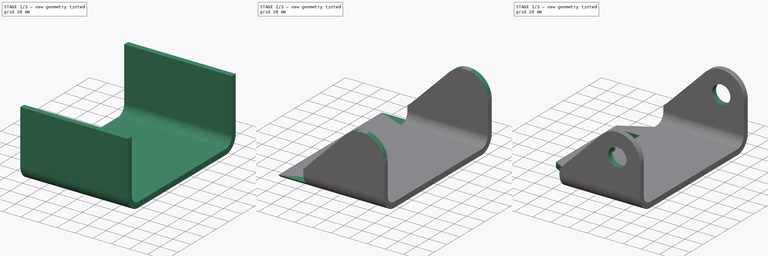
[diagram: build sequence overview — one tinted view per stage of 3, left to right]
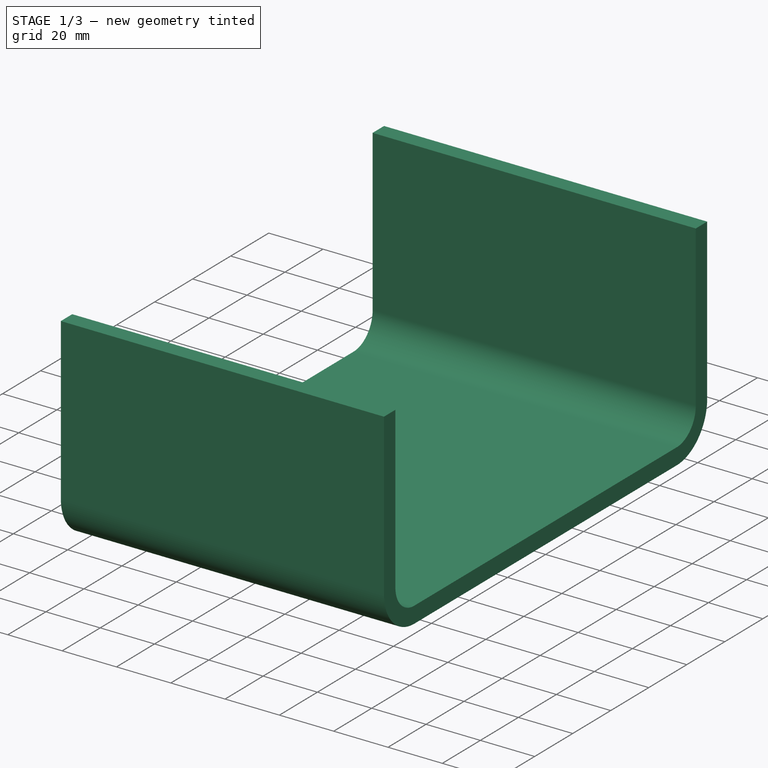
[diagram: stage 1 of 3 — iso view after this stage's code; geometry added in this stage tinted green]
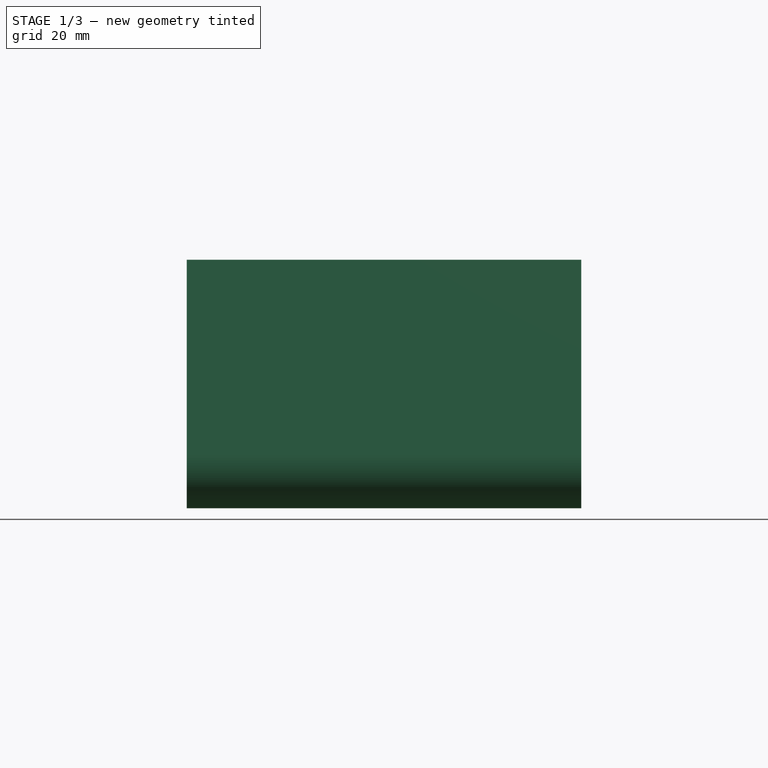
[diagram: stage 1 of 3 — front view after this stage's code; geometry added in this stage tinted green]
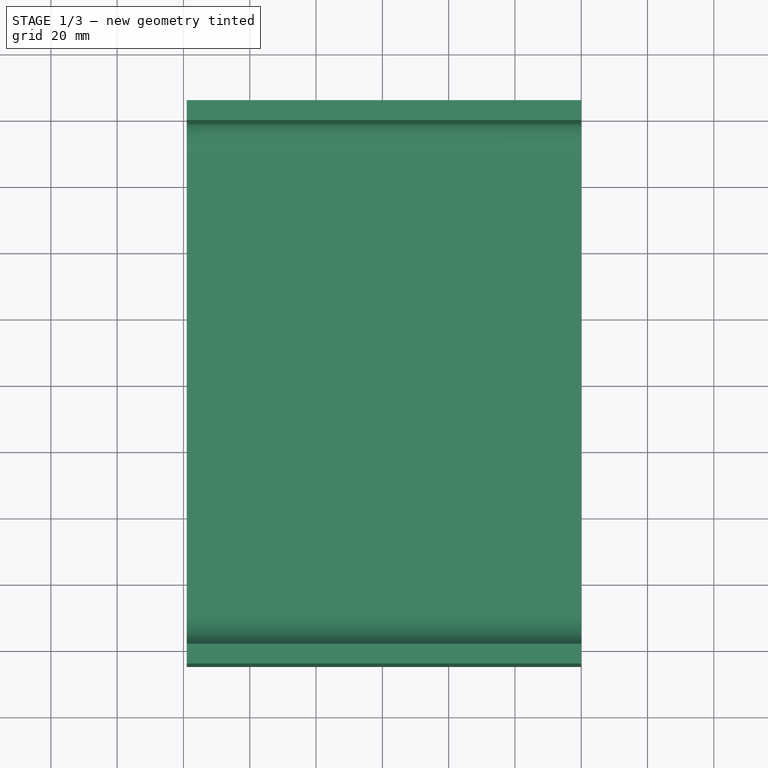
[diagram: stage 1 of 3 — top view after this stage's code; geometry added in this stage tinted green]
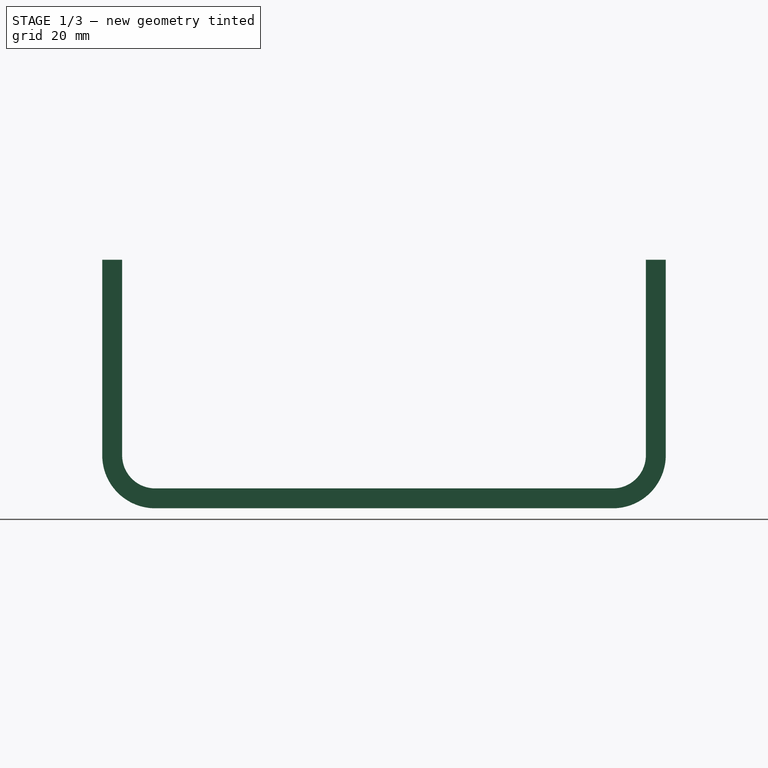
[diagram: stage 1 of 3 — right view after this stage's code; geometry added in this stage tinted green]
FCSTD DOCUMENT  (FreeCAD 1.1R42180 (Git))
Label: 25-06-15-SM_MOWER_BRACKET
License: Creative Commons Attribution-NonCommercial-ShareAlike 4.0
LicenseURL: https://creativecommons.org/licenses/by-nc-sa/4.0/
objects: Sketcher::SketchObject×4, PartDesign::Pocket×3, App::Point×1, PartDesign::Pad×1, PartDesign::Thickness×1, PartDesign::Body×1, App::TextDocument×1
note: 24 computed .brp shape members not serialized (recipe doc carries the construction recipe); baked Part::Feature solids carry a one-line shape summary decoded from their .brp

FEATURE [App::Point] Origin001  label="Origine"
  Role = Origin
FEATURE [Sketcher::SketchObject] Sketch
  ArcFitTolerance = 1e-06
  AttachmentSupport = -> [Origin]
  ExternalTypes = [0]
  FullyConstrained = true
  MakeInternals = false
  MapMode = 5
  Placement = pos=(0,0,0) rot=(0.57735,0.57735,0.57735;2.0944rad)
  sketch-geometry (6):
    g0: LineSegment StartX=-85 StartY=75 StartZ=0 EndX=85 EndY=75 EndZ=0
    g1: LineSegment StartX=85 StartY=75 StartZ=0 EndX=85 EndY=16 EndZ=0
    g2: ArcOfCircle CenterX=69 CenterY=16 CenterZ=0 NormalX=0 NormalY=0 NormalZ=1 AngleXU=0 Radius=16 StartAngle=4.71239 EndAngle=6.28319
    g3: LineSegment StartX=69 StartY=0 StartZ=0 EndX=-69 EndY=0 EndZ=0
    g4: ArcOfCircle CenterX=-69 CenterY=16 CenterZ=0 NormalX=0 NormalY=0 NormalZ=1 AngleXU=0 Radius=16 StartAngle=3.14159 EndAngle=4.71239
    g5: LineSegment StartX=-85 StartY=16 StartZ=0 EndX=-85 EndY=75 EndZ=0
  constraints (15):
    c: Coincident(g0,g1)
    c: Vertical(g1)
    c: Tangent(g1,g2) = 1.5708
    c: PointOnObject(g2,g-1)
    c: PointOnObject(g3,g-1)
    c: Tangent(g3,g4) = 1.5708
    c: Tangent(g4,g5) = 1.5708
    c: Coincident(g5,g0)
    c: DistanceY(g-1,g0) = 75
    c: DistanceX(g0,g0) = 170
    c: Symmetric(g0,g0,g-2)
    c: Vertical(g5)
    c: Tangent(g2,g3) = 1.5708
    c: Radius(g4) = 16
    c: Equal(g4,g2)
FEATURE [PartDesign::Pad] Pad
  Direction = (1,0,0)
  Length = 119
  Length2 = 10
  Profile = -> Sketch
  ReferenceAxis = -> Sketch [N_Axis]
  Refine = true
  Reversed = true
  Suppressed = false
  Type = 0
FEATURE [Sketcher::SketchObject] Sketch001
  ArcFitTolerance = 1e-06
  AttachmentSupport = -> [Origin]
  ExternalGeometry = -> [Pad]
  ExternalTypes = [0]
  FullyConstrained = true
  MakeInternals = false
  MapMode = 5
  Placement = pos=(0,0,0) rot=(1,0,0;1.5708rad)
  sketch-geometry (12):
    g0: LineSegment StartX=0 StartY=0 StartZ=0 EndX=0 EndY=50 EndZ=0
    g1: ArcOfCircle CenterX=-25 CenterY=50 CenterZ=0 NormalX=0 NormalY=0 NormalZ=1 AngleXU=0 Radius=25 StartAngle=1e-16 EndAngle=2.35619
    g2: LineSegment StartX=-42.6777 StartY=67.6777 StartZ=0 EndX=-89 EndY=21.3553 EndZ=0
    g3: LineSegment StartX=-89 StartY=6 StartZ=0 EndX=-119 EndY=6 EndZ=0
    g4: LineSegment StartX=-119 StartY=6 StartZ=0 EndX=-119 EndY=0 EndZ=0
    g5: LineSegment StartX=-119 StartY=0 StartZ=0 EndX=0 EndY=0 EndZ=0
    g6: LineSegment StartX=150 StartY=-100 StartZ=0 EndX=150 EndY=100 EndZ=0
    g7: LineSegment StartX=150 StartY=100 StartZ=0 EndX=-150 EndY=100 EndZ=0
    g8: LineSegment StartX=-150 StartY=100 StartZ=0 EndX=-150 EndY=-100 EndZ=0
    g9: LineSegment StartX=-150 StartY=-100 StartZ=0 EndX=150 EndY=-100 EndZ=0
    g10: GeomPoint [constr] X=0 Y=0 Z=0
    g11: LineSegment StartX=-89 StartY=6 StartZ=0 EndX=-89 EndY=21.3553 EndZ=0
  constraints (31):
    c: Coincident(g-1,g0)
    c: Vertical(g0)
    c: Tangent(g0,g1) = -1.5708
    c: Tangent(g1,g2) = -1.5708
    c: Horizontal(g3)
    c: Coincident(g3,g4)
    c: PointOnObject(g4,g-1)
    c: Vertical(g4)
    c: Coincident(g4,g5)
    c: Coincident(g5,g0)
    c: Vertical(g3,g-3)
    c: Radius(g1) = 25
    c: Tangent(g1,g-3)
    c: Angle(g5,g2) = 0.785398
    c: Distance(g4,g4) = 6
    c: Distance(g3,g-2) = 89
    c: Coincident(g6,g7)
    c: Coincident(g7,g8)
    c: Coincident(g8,g9)
    c: Coincident(g9,g6)
    c: Vertical(g6)
    c: Vertical(g8)
    c: Horizontal(g7)
    c: Horizontal(g9)
    c: Symmetric(g8,g6,g10)
    c: Coincident(g10,g0)
    c: Coincident(g11,g3)
    c: Coincident(g11,g2)
    c: Vertical(g11)
    c: DistanceX(g9,g9) = 300
    c: DistanceY(g6,g6) = 200
FEATURE [PartDesign::Thickness] Thickness
  Base = -> Pad [Face8,Face1,Face7]
  BaseFeature = -> Pad
  Intersection = false
  Join = 0
  Mode = 0
  Refine = true
  Reversed = true
  SupportTransform = false
  Suppressed = false
  Value = 6
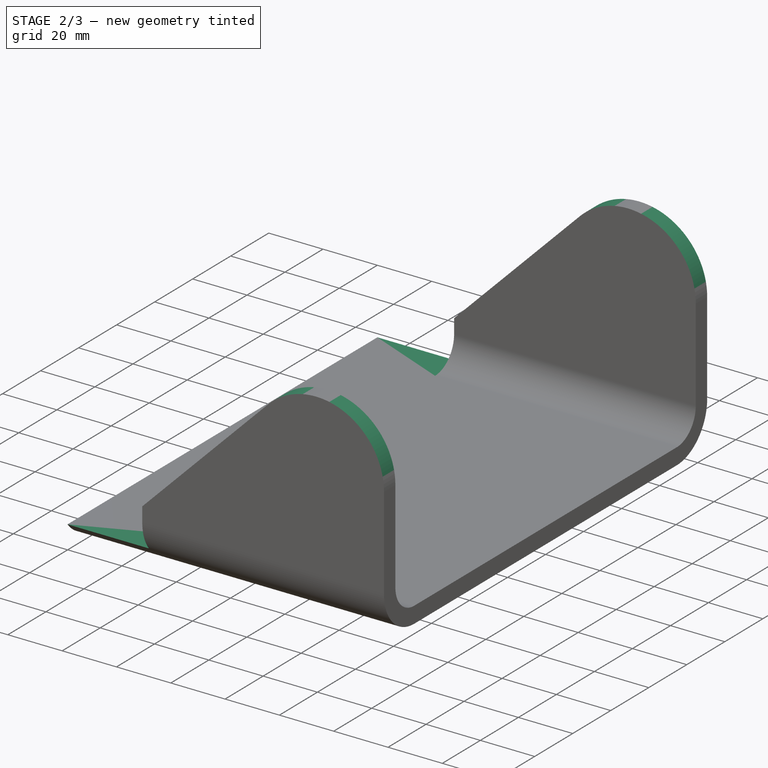
[diagram: stage 2 of 3 — iso view after this stage's code; geometry added in this stage tinted green]
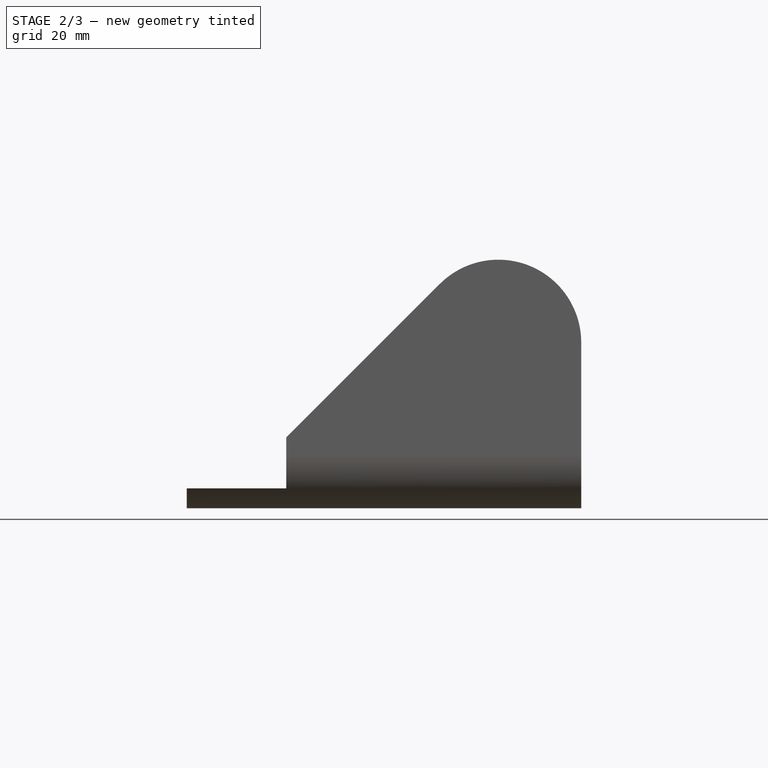
[diagram: stage 2 of 3 — front view after this stage's code; geometry added in this stage tinted green]
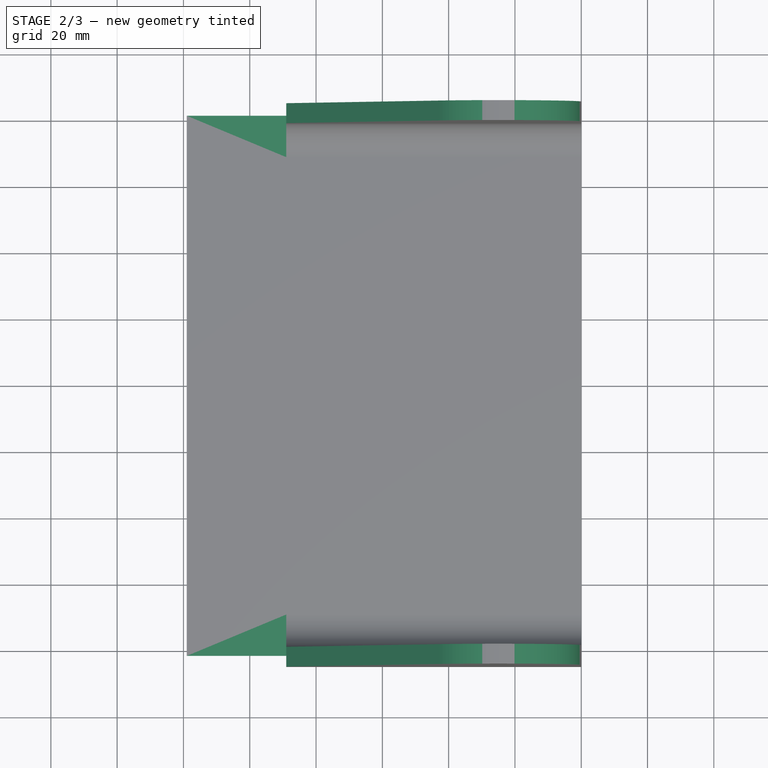
[diagram: stage 2 of 3 — top view after this stage's code; geometry added in this stage tinted green]
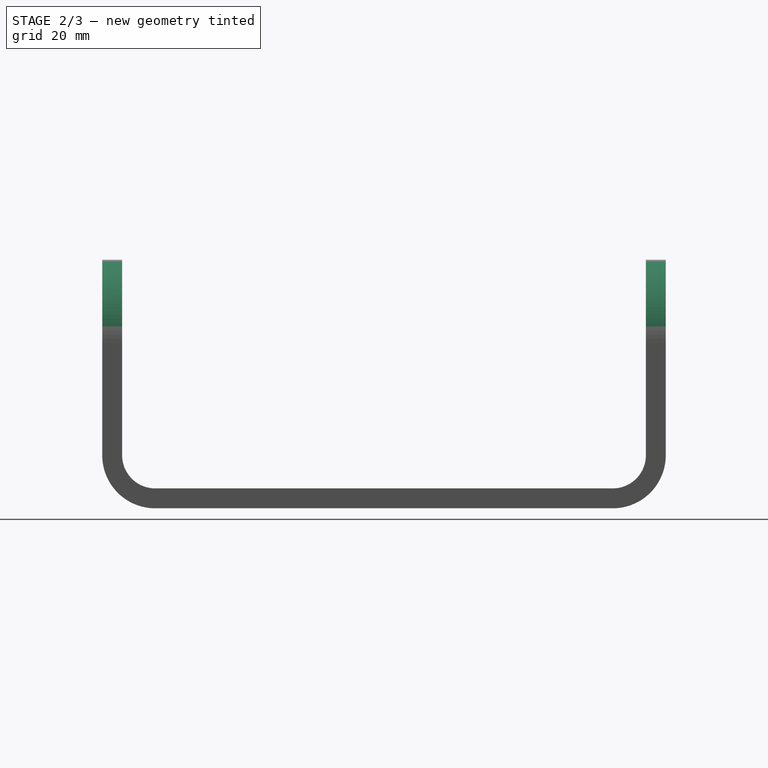
[diagram: stage 2 of 3 — right view after this stage's code; geometry added in this stage tinted green]
FEATURE [PartDesign::Pocket] Pocket
  BaseFeature = -> Thickness
  Direction = (0,1,0)
  Length = 5
  Length2 = 5
  Midplane = true
  Profile = -> Sketch001
  ReferenceAxis = -> Sketch001 [N_Axis]
  Refine = true
  Suppressed = false
  Type = 1
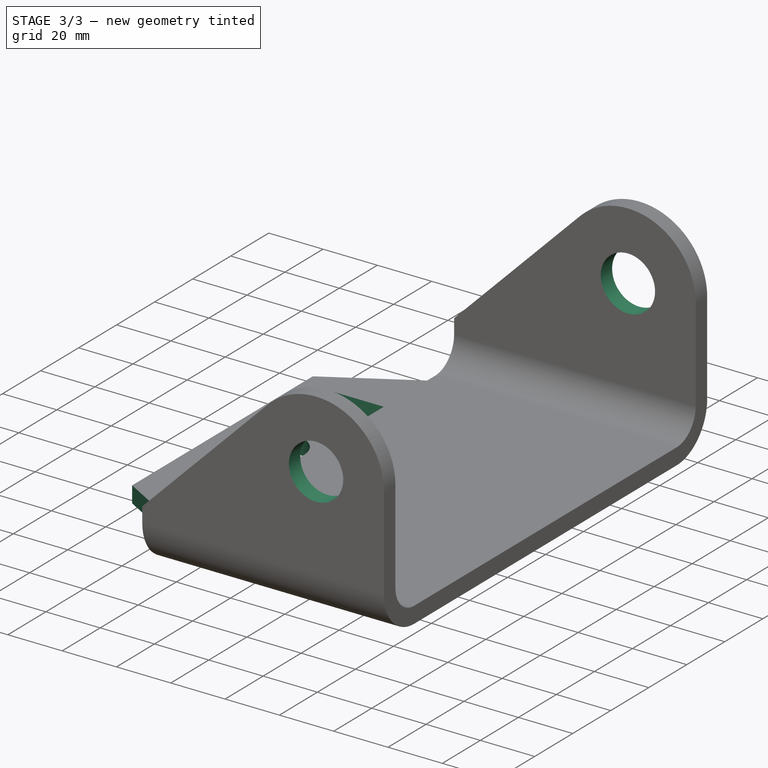
[diagram: stage 3 of 3 — iso view after this stage's code; geometry added in this stage tinted green]
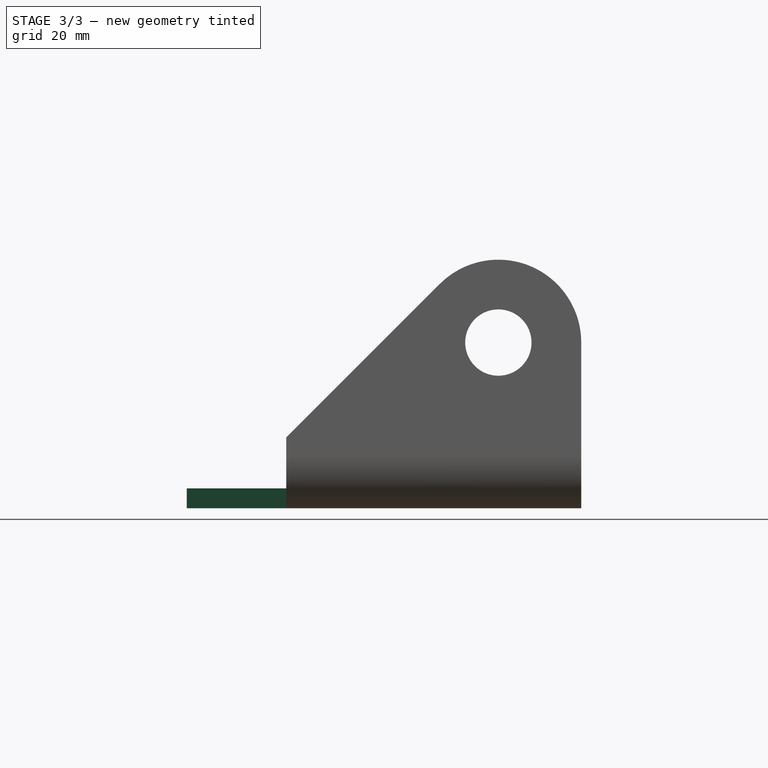
[diagram: stage 3 of 3 — front view after this stage's code; geometry added in this stage tinted green]
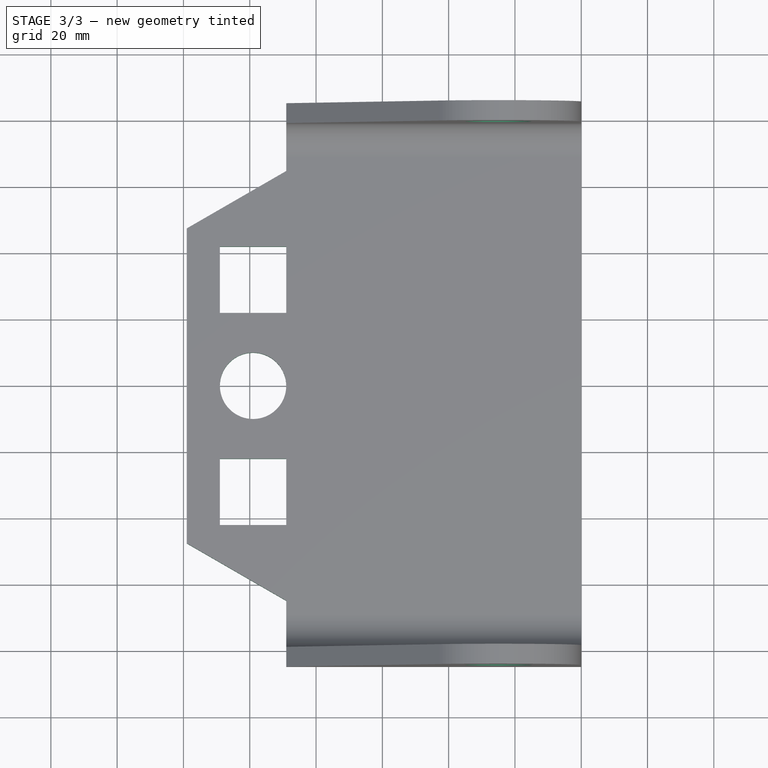
[diagram: stage 3 of 3 — top view after this stage's code; geometry added in this stage tinted green]
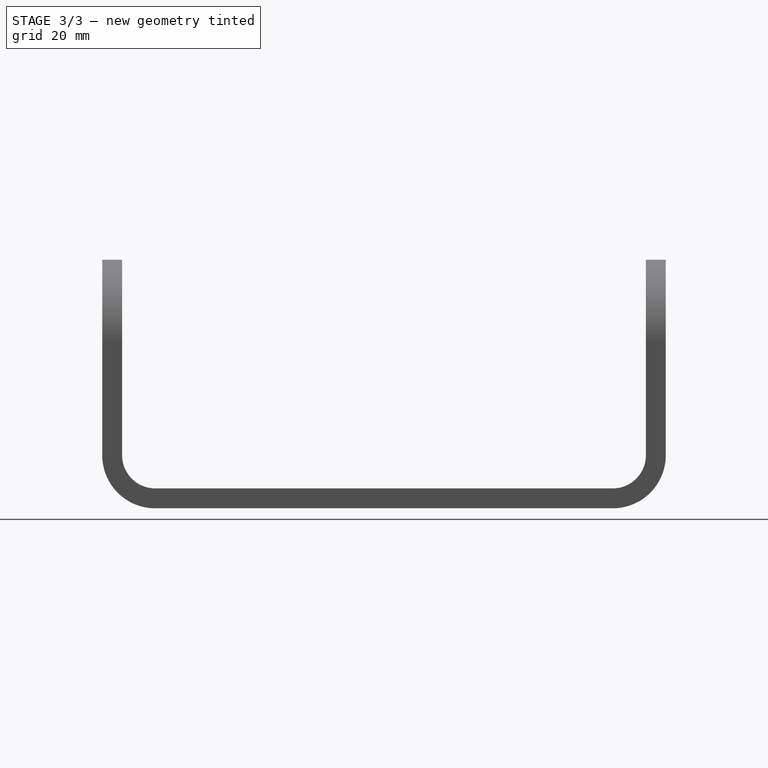
[diagram: stage 3 of 3 — right view after this stage's code; geometry added in this stage tinted green]
FEATURE [Sketcher::SketchObject] Sketch002
  ArcFitTolerance = 1e-06
  AttachmentSupport = -> [Pocket]
  ExternalGeometry = -> [Pocket]
  ExternalTypes = [0,0,0]
  FullyConstrained = true
  MakeInternals = false
  MapMode = 5
  Placement = pos=(0,0,6) rot=(0,0,1;0rad)
  sketch-geometry (19):
    g0: LineSegment StartX=-89 StartY=64.8205 StartZ=0 EndX=-89 EndY=100 EndZ=0
    g1: LineSegment StartX=-89 StartY=100 StartZ=0 EndX=-169 EndY=100 EndZ=0
    g2: LineSegment StartX=-169 StartY=100 StartZ=0 EndX=-169 EndY=-100 EndZ=0
    g3: LineSegment StartX=-169 StartY=-100 StartZ=0 EndX=-89 EndY=-100 EndZ=0
    g4: LineSegment StartX=-89 StartY=-100 StartZ=0 EndX=-89 EndY=-64.8205 EndZ=0
    g5: LineSegment StartX=-89 StartY=-64.8205 StartZ=0 EndX=-119 EndY=-47.5 EndZ=0
    g6: LineSegment StartX=-119 StartY=-47.5 StartZ=0 EndX=-119 EndY=47.5 EndZ=0
    g7: LineSegment StartX=-119 StartY=47.5 StartZ=0 EndX=-89 EndY=64.8205 EndZ=0
    g8: Circle CenterX=-99 CenterY=0 CenterZ=0 NormalX=0 NormalY=0 NormalZ=1 AngleXU=0 Radius=10
    g9: LineSegment StartX=-89 StartY=22 StartZ=0 EndX=-89 EndY=42 EndZ=0
    g10: LineSegment StartX=-89 StartY=42 StartZ=0 EndX=-109 EndY=42 EndZ=0
    g11: LineSegment StartX=-109 StartY=42 StartZ=0 EndX=-109 EndY=22 EndZ=0
    g12: LineSegment StartX=-109 StartY=22 StartZ=0 EndX=-89 EndY=22 EndZ=0
    g13: GeomPoint [constr] X=-99 Y=32 Z=0
    g14: LineSegment StartX=-89 StartY=-42 StartZ=0 EndX=-89 EndY=-22 EndZ=0
    g15: LineSegment StartX=-89 StartY=-22 StartZ=0 EndX=-109 EndY=-22 EndZ=0
    g16: LineSegment StartX=-109 StartY=-22 StartZ=0 EndX=-109 EndY=-42 EndZ=0
    g17: LineSegment StartX=-109 StartY=-42 StartZ=0 EndX=-89 EndY=-42 EndZ=0
    g18: GeomPoint [constr] X=-99 Y=-32 Z=0
  constraints (51):
    c: Vertical(g0)
    c: Coincident(g0,g1)
    c: Horizontal(g1)
    c: Coincident(g1,g2)
    c: Vertical(g2)
    c: Coincident(g2,g3)
    c: Horizontal(g3)
    c: Coincident(g3,g4)
    c: Vertical(g4)
    c: Coincident(g4,g5)
    c: PointOnObject(g5,g-3)
    c: Coincident(g5,g6)
    c: Coincident(g6,g7)
    c: Coincident(g7,g0)
    c: Vertical(g-5,g4)
    c: Angle(g5,g7) = 1.0472
    c: DistanceY(g6,g6) = 95
    c: Symmetric(g4,g0,g-1)
    c: Symmetric(g5,g6,g-1)
    c: DistanceX(g3,g3) = 80
    c: DistanceY(g2,g2) = 200
    c: Equal(g0,g4)
    c: PointOnObject(g8,g-1)
    c: Coincident(g9,g10)
    c: Coincident(g10,g11)
    c: Coincident(g11,g12)
    c: Coincident(g12,g9)
    c: Vertical(g9)
    c: Vertical(g11)
    c: Horizontal(g10)
    c: Horizontal(g12)
    c: Symmetric(g11,g9,g13)
    c: Coincident(g14,g15)
    c: Coincident(g15,g16)
    c: Coincident(g16,g17)
    c: Coincident(g17,g14)
    c: Vertical(g14)
    c: Vertical(g16)
    c: Horizontal(g15)
    c: Horizontal(g17)
    c: Symmetric(g16,g14,g18)
    c: Symmetric(g18,g13,g8)
    c: Vertical(g11,g15)
    c: Equal(g15,g14)
    c: Equal(g15,g12)
    c: Equal(g12,g9)
    c: DistanceY(g14,g9) = 44
    c: Distance(g11,g6) = 10
    c: Distance(g10,g10) = 20
    c: Diameter(g8) = 20
    c: Distance(g-4,g-4) = 30
FEATURE [PartDesign::Pocket] Pocket001
  BaseFeature = -> Pocket
  Direction = (0,0,-1)
  Length = 5
  Length2 = 5
  Midplane = true
  Profile = -> Sketch002
  ReferenceAxis = -> Sketch002 [N_Axis]
  Refine = true
  Suppressed = false
  Type = 1
FEATURE [Sketcher::SketchObject] Sketch003
  ArcFitTolerance = 1e-06
  AttachmentSupport = -> [Pocket001]
  ExternalGeometry = -> [Pocket001]
  ExternalTypes = [0]
  FullyConstrained = true
  MakeInternals = false
  MapMode = 5
  Placement = pos=(0,-85,0) rot=(1,0,0;1.5708rad)
  sketch-geometry (1):
    g0: Circle CenterX=-25 CenterY=50 CenterZ=0 NormalX=0 NormalY=0 NormalZ=1 AngleXU=0 Radius=10
  constraints (3):
    c: Diameter(g0) = 20
    c: Coincident(g0,g-3)
    c: Distance(g0,g-1) = 50
FEATURE [PartDesign::Pocket] Pocket002
  BaseFeature = -> Pocket001
  Direction = (0,1,-2e-16)
  Length = 5
  Length2 = 5
  Profile = -> Sketch003
  ReferenceAxis = -> Sketch003 [N_Axis]
  Refine = true
  Suppressed = false
  Type = 1
FEATURE [PartDesign::Body] Body
  AllowCompound = true
  Group = -> [Sketch,Pad,Sketch001,Thickness,Pocket,Sketch002,Pocket001,Sketch003,Pocket002]
  Origin = -> Origin
  Tip = -> Pocket002
FEATURE [App::TextDocument] Text_document  label="Text document"
  Text = https://www.youtube.com/watch?v=vT-nWArNubY&t=2177s\n\nPlain Carbon Steel 7800 kg/m3\n\n1.1641 kg OK!
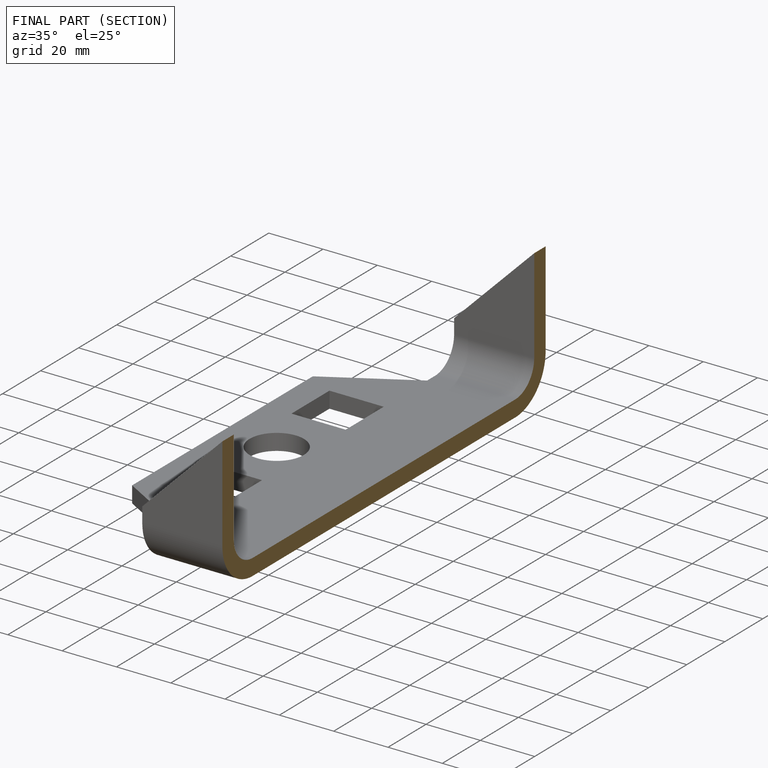
[diagram: finished part — half-section view (interior)]
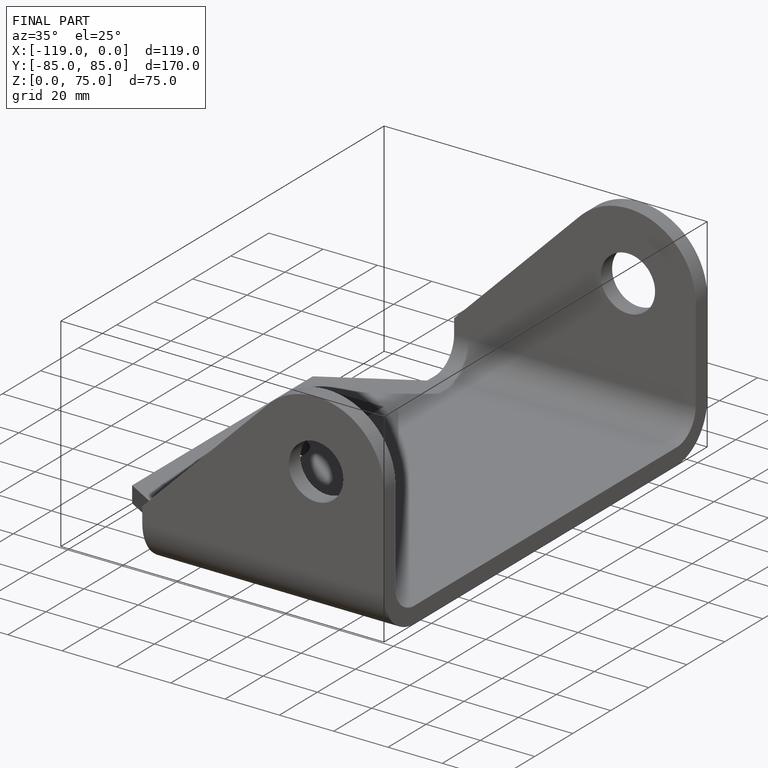
[diagram: finished part — iso view with bounding-box wireframe]
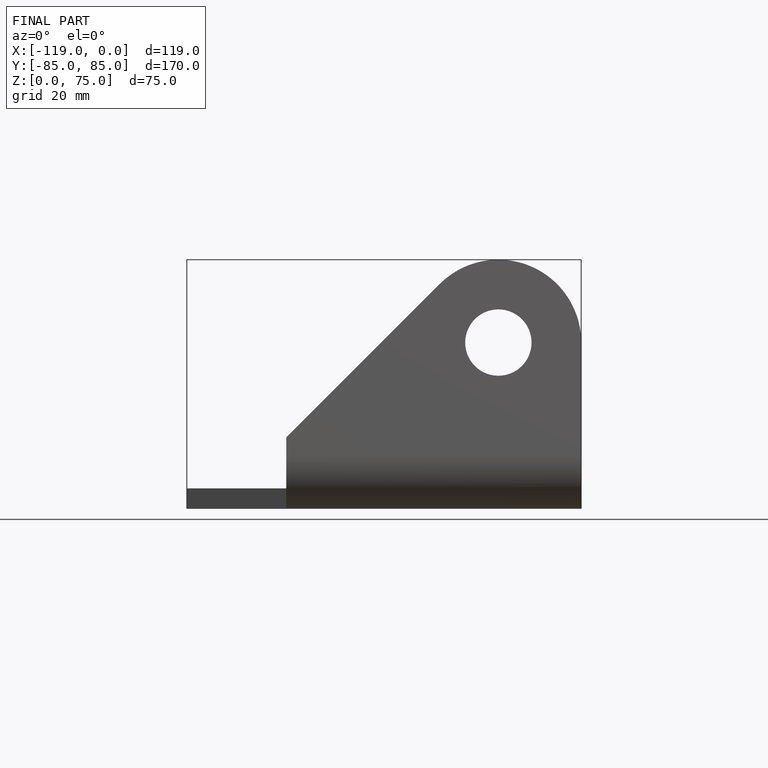
[diagram: finished part — front view with bounding-box wireframe]
